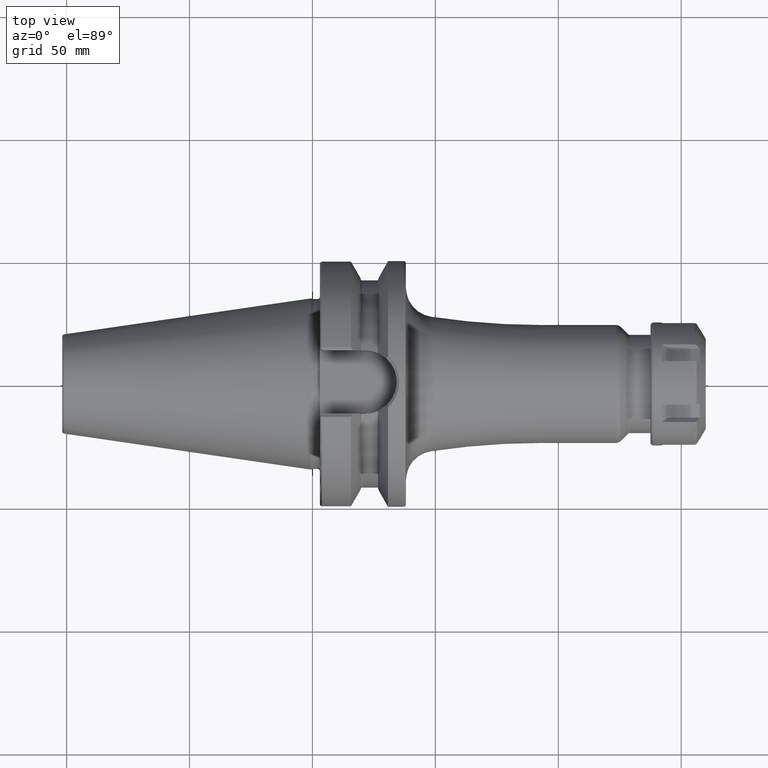
[diagram: clean part render]
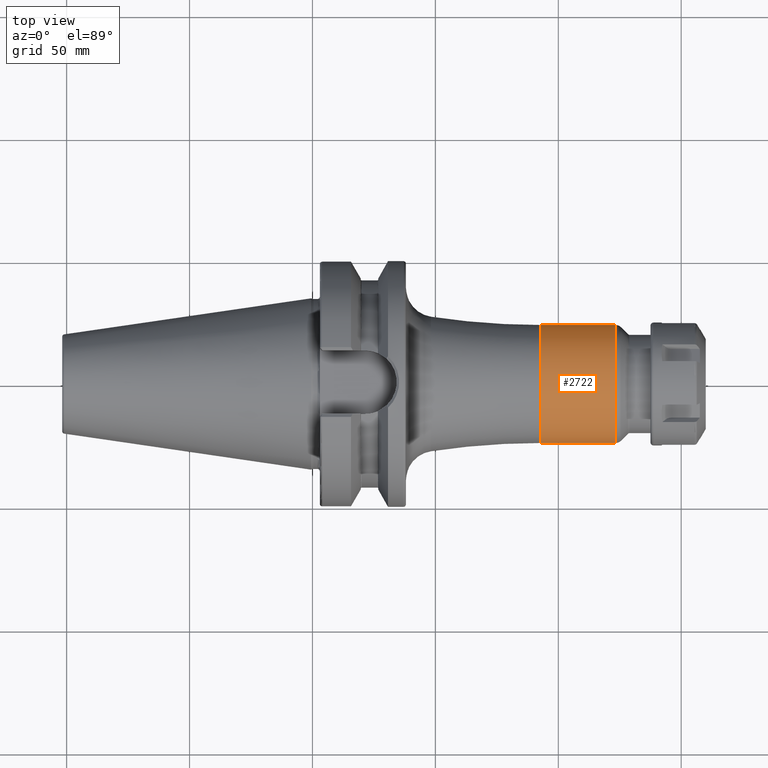
[diagram: same view with one face highlighted and labeled with its STEP entity id]
A machine part, top view. The second image highlights one B-rep face of the part: STEP entity #2722.
In plain terms, the highlighted cylindrical surface (partial cylindrical patch) has radius 24 mm, axis along (1, 0, 0).
Its self-contained STEP definition (entity closure, byte-faithful):
#879=DIRECTION('',(-1.E0,0.E0,-5.987120143222E-14));
#880=VECTOR('',#879,3.035735931288E1);
#881=CARTESIAN_POINT('',(1.233573593129E2,-2.4E1,1.813620903687E-12));
#882=LINE('',#881,#880);
#888=DIRECTION('',(-1.E0,0.E0,5.986340331366E-14));
#889=VECTOR('',#888,3.035735931288E1);
#890=CARTESIAN_POINT('',(1.233573593129E2,2.4E1,-1.814355691767E-12));
#891=LINE('',#890,#889);
#892=CARTESIAN_POINT('',(9.3E1,0.E0,0.E0));
#893=DIRECTION('',(1.E0,0.E0,0.E0));
#894=DIRECTION('',(0.E0,1.E0,0.E0));
#895=AXIS2_PLACEMENT_3D('',#892,#893,#894);
#897=CARTESIAN_POINT('',(1.233573593129E2,0.E0,0.E0));
#898=DIRECTION('',(-1.E0,0.E0,0.E0));
#899=DIRECTION('',(0.E0,-1.E0,0.E0));
#900=AXIS2_PLACEMENT_3D('',#897,#898,#899);
#1491=CARTESIAN_POINT('',(1.233573593129E2,2.4E1,0.E0));
#1492=CARTESIAN_POINT('',(1.233573593129E2,-2.4E1,0.E0));
#1493=VERTEX_POINT('',#1491);
#1494=VERTEX_POINT('',#1492);
#1499=CARTESIAN_POINT('',(9.3E1,2.4E1,0.E0));
#1500=CARTESIAN_POINT('',(9.3E1,-2.4E1,0.E0));
#1501=VERTEX_POINT('',#1499);
#1502=VERTEX_POINT('',#1500);
#2710=CARTESIAN_POINT('',(3.2545E1,0.E0,0.E0));
#2711=DIRECTION('',(1.E0,0.E0,0.E0));
#2712=DIRECTION('',(0.E0,-1.E0,0.E0));
#2713=AXIS2_PLACEMENT_3D('',#2710,#2711,#2712);
#2714=CYLINDRICAL_SURFACE('',#2713,2.4E1);
#2715=ORIENTED_EDGE('',*,*,#2675,.F.);
#2716=ORIENTED_EDGE('',*,*,#2705,.F.);
#2718=ORIENTED_EDGE('',*,*,#2717,.F.);
#2719=ORIENTED_EDGE('',*,*,#2701,.T.);
#2720=EDGE_LOOP('',(#2715,#2716,#2718,#2719));
#2721=FACE_OUTER_BOUND('',#2720,.F.);
#2722=ADVANCED_FACE('',(#2721),#2714,.T.);
#896=CIRCLE('',#895,2.4E1);
#901=CIRCLE('',#900,2.4E1);
#2675=EDGE_CURVE('',#1501,#1502,#896,.T.);
#2701=EDGE_CURVE('',#1494,#1502,#882,.T.);
#2705=EDGE_CURVE('',#1493,#1501,#891,.T.);
#2717=EDGE_CURVE('',#1494,#1493,#901,.T.);